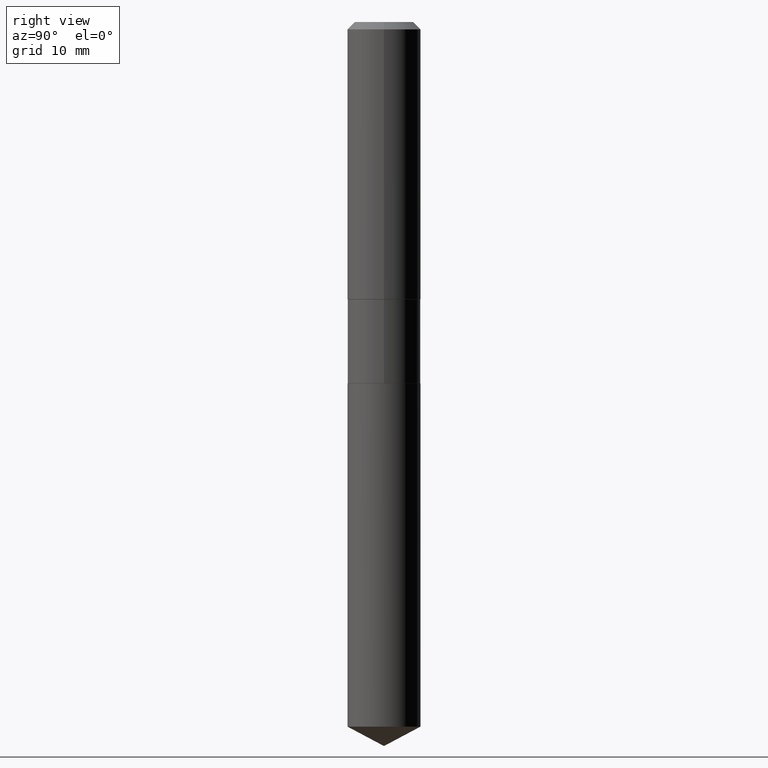
[diagram: clean part render]
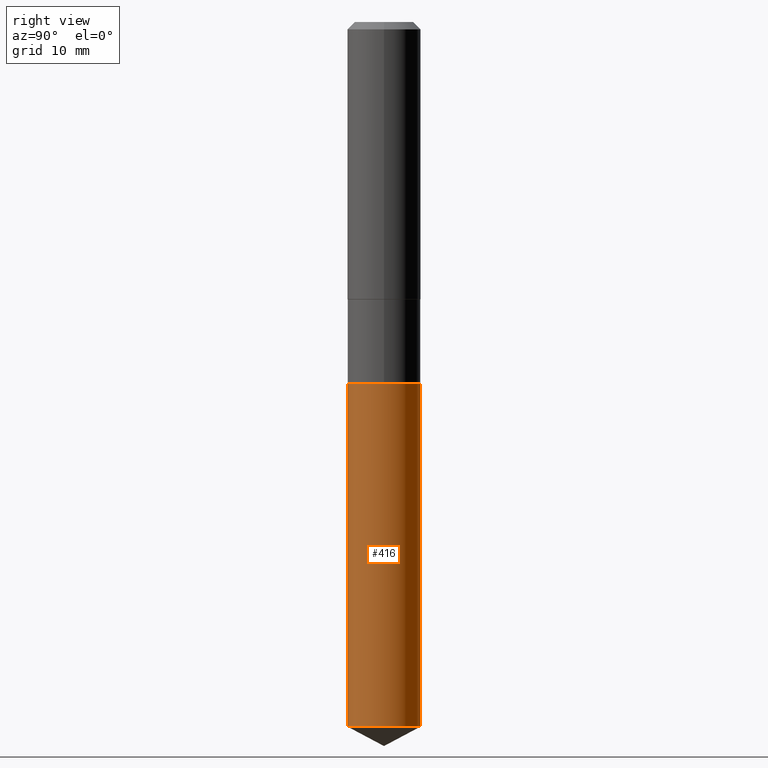
[diagram: same view with one face highlighted and labeled with its STEP entity id]
A machine part, right view. The second image highlights one B-rep face of the part: STEP entity #416.
In plain terms, the highlighted cylindrical surface (edge-blend (fillet) strip) has radius 5.9538 mm, axis along (-0, 0, 1).
Its self-contained STEP definition (entity closure, byte-faithful):
#24 = EDGE_LOOP ( 'NONE', ( #254, #190, #226, #363 ) ) ;
#27 = EDGE_CURVE ( 'NONE', #102, #387, #35, .T. ) ;
#34 = VERTEX_POINT ( 'NONE', #285 ) ;
#35 = CIRCLE ( 'NONE', #237, 0.2343999999999999972 ) ;
#39 = LINE ( 'NONE', #420, #304 ) ;
#62 = LINE ( 'NONE', #136, #425 ) ;
#68 = DIRECTION ( 'NONE',  ( -6.982962677686265922E-15, -1.000000000000000000, 3.496392483358698711E-15 ) ) ;
#82 = AXIS2_PLACEMENT_3D ( 'NONE', #452, #487, #148 ) ;
#100 = CARTESIAN_POINT ( 'NONE',  ( 1.105654119864874407E-28, -1.578673001733748720E-14, -4.521367309218550901 ) ) ;
#102 = VERTEX_POINT ( 'NONE', #274 ) ;
#136 = CARTESIAN_POINT ( 'NONE',  ( -1.636806451649603915E-15, -0.2344000000000081019, -2.319799999999998974 ) ) ;
#148 = DIRECTION ( 'NONE',  ( -6.982962677686265922E-15, -1.000000000000000000, 3.496392483358698711E-15 ) ) ;
#149 = AXIS2_PLACEMENT_3D ( 'NONE', #100, #255, #209 ) ;
#178 = EDGE_CURVE ( 'NONE', #307, #34, #330, .T. ) ;
#190 = ORIENTED_EDGE ( 'NONE', *, *, #353, .T. ) ;
#193 = DIRECTION ( 'NONE',  ( -2.445322765975917676E-29, 3.491690476734840083E-15, 1.000000000000000000 ) ) ;
#209 = DIRECTION ( 'NONE',  ( -6.982962677686265922E-15, -1.000000000000000000, 2.330928322239132474E-15 ) ) ;
#210 = EDGE_CURVE ( 'NONE', #307, #102, #62, .T. ) ;
#225 = CYLINDRICAL_SURFACE ( 'NONE', #82, 0.2343999999999999972 ) ;
#226 = ORIENTED_EDGE ( 'NONE', *, *, #27, .F. ) ;
#237 = AXIS2_PLACEMENT_3D ( 'NONE', #403, #362, #68 ) ;
#249 = DIRECTION ( 'NONE',  ( -2.445322765975917676E-29, 3.491690476734840083E-15, 1.000000000000000000 ) ) ;
#254 = ORIENTED_EDGE ( 'NONE', *, *, #178, .T. ) ;
#255 = DIRECTION ( 'NONE',  ( -2.445322765975917676E-29, 3.491690476734839689E-15, 1.000000000000000000 ) ) ;
#267 = CARTESIAN_POINT ( 'NONE',  ( 1.665512172621785257E-15, 0.2343999999999918649, -2.319800000000000750 ) ) ;
#274 = CARTESIAN_POINT ( 'NONE',  ( -1.636806451649603915E-15, -0.2344000000000081019, -2.319799999999998974 ) ) ;
#285 = CARTESIAN_POINT ( 'NONE',  ( 1.665512172621785454E-15, 0.2343999999999842321, -4.521367309218551789 ) ) ;
#304 = VECTOR ( 'NONE', #193, 39.37007874015748143 ) ;
#307 = VERTEX_POINT ( 'NONE', #435 ) ;
#330 = CIRCLE ( 'NONE', #149, 0.2343999999999999972 ) ;
#353 = EDGE_CURVE ( 'NONE', #34, #387, #39, .T. ) ;
#362 = DIRECTION ( 'NONE',  ( -2.445322765975917676E-29, 3.491690476734839689E-15, 1.000000000000000000 ) ) ;
#363 = ORIENTED_EDGE ( 'NONE', *, *, #210, .F. ) ;
#374 = FACE_OUTER_BOUND ( 'NONE', #24, .T. ) ;
#387 = VERTEX_POINT ( 'NONE', #267 ) ;
#403 = CARTESIAN_POINT ( 'NONE',  ( 5.672998536588279470E-29, -8.099538409848329813E-15, -2.319799999999999862 ) ) ;
#416 = ADVANCED_FACE ( 'NONE', ( #374 ), #225, .T. ) ;
#420 = CARTESIAN_POINT ( 'NONE',  ( 1.665512172621731417E-15, 0.2343999999999918926, -2.319800000000000750 ) ) ;
#425 = VECTOR ( 'NONE', #249, 39.37007874015748143 ) ;
#435 = CARTESIAN_POINT ( 'NONE',  ( -1.636806451649550076E-15, -0.2344000000000157624, -4.521367309218549124 ) ) ;
#452 = CARTESIAN_POINT ( 'NONE',  ( 5.672998536588279470E-29, -8.099538409848329813E-15, -2.319799999999999862 ) ) ;
#487 = DIRECTION ( 'NONE',  ( -2.445322765975917676E-29, 3.491690476734839689E-15, 1.000000000000000000 ) ) ;